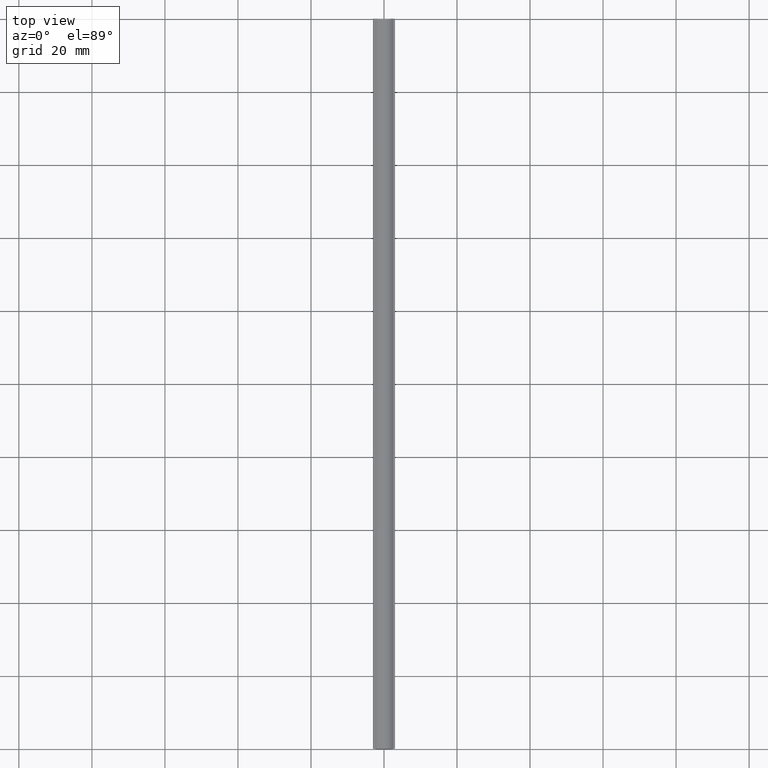
[diagram: clean part render]
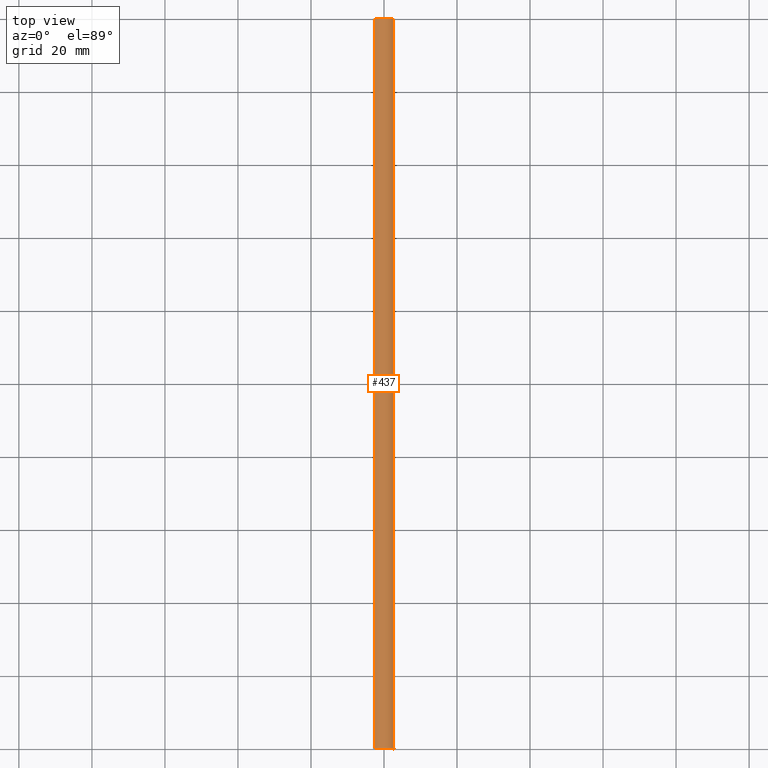
[diagram: same view with one face highlighted and labeled with its STEP entity id]
A machine part, top view. The second image highlights one B-rep face of the part: STEP entity #437.
In plain terms, the highlighted face is a freeform B-spline surface patch.
Its self-contained STEP definition (entity closure, byte-faithful):
#152=CARTESIAN_POINT('',(2.477319587627130,0.0,1.101030927835138));
#153=VERTEX_POINT('',#152);
#165=CARTESIAN_POINT('',(-2.477319587630510,0.0,1.101030927835092));
#166=VERTEX_POINT('',#165);
#167=CARTESIAN_POINT('',(-2.477319587630510,0.0,1.101030927835092));
#168=CARTESIAN_POINT('',(-2.243605512997933,0.0,0.841884956283377));
#169=CARTESIAN_POINT('',(-1.693889548455284,0.0,0.397998059425644));
#170=CARTESIAN_POINT('',(-0.786785272524818,0.0,0.050367243145911));
#171=CARTESIAN_POINT('',(0.117202742366407,0.0,-0.032485259452997));
#172=CARTESIAN_POINT('',(0.899341585064564,0.0,0.091211854875534));
#173=CARTESIAN_POINT('',(1.737008639823064,0.0,0.437582120115600));
#174=CARTESIAN_POINT('',(2.224163110301102,0.0,0.820229923310281));
#175=CARTESIAN_POINT('',(2.477319587627130,0.0,1.101030927835138));
#176=B_SPLINE_CURVE_WITH_KNOTS('',3,(#167,#168,#169,#170,#171,#172,#173,#174,#175),.UNSPECIFIED.,.F.,.U.,(4,1,1,1,1,1,4),(0.000000388793252,1.046878569888817,2.093839955818141,2.878922345936131,3.751381498403354,4.449332256195157,5.583453707900905),.UNSPECIFIED.);
#177=EDGE_CURVE('',#166,#153,#176,.T.);
#215=CARTESIAN_POINT('',(-2.477319587630510,200.0,1.101030927835092));
#216=VERTEX_POINT('',#215);
#228=CARTESIAN_POINT('',(2.477319587627130,200.0,1.101030927835138));
#229=VERTEX_POINT('',#228);
#230=CARTESIAN_POINT('',(-2.477319587630510,200.0,1.101030927835092));
#231=CARTESIAN_POINT('',(-2.185301951687908,200.000000000000200,0.776901298571105));
#232=CARTESIAN_POINT('',(-1.614482824410439,199.999999999999690,0.352477076912504));
#233=CARTESIAN_POINT('',(-0.699253217234550,200.000000000000400,0.042460696455248));
#234=CARTESIAN_POINT('',(0.088041053746234,199.999999999999090,-0.029793271423371));
#235=CARTESIAN_POINT('',(0.754510882835182,200.000000000001190,0.066744718531499));
#236=CARTESIAN_POINT('',(1.610275172972183,199.999999999998890,0.356528981793505));
#237=CARTESIAN_POINT('',(2.146503356365620,200.000000000000510,0.733434808261490));
#238=CARTESIAN_POINT('',(2.477319587627130,200.0,1.101030927835138));
#239=B_SPLINE_CURVE_WITH_KNOTS('',3,(#230,#231,#232,#233,#234,#235,#236,#237,#238),.UNSPECIFIED.,.F.,.U.,(4,1,1,1,1,1,4),(0.000000388793252,1.308621055642397,2.093839955818141,2.878922345936131,3.664121031663046,4.100346029470019,5.583453707900905),.UNSPECIFIED.);
#240=EDGE_CURVE('',#216,#229,#239,.T.);
#399=CARTESIAN_POINT('',(-2.477319587630510,200.0,1.101030927835092));
#400=CARTESIAN_POINT('',(-2.477319587630510,0.0,1.101030927835092));
#401=QUASI_UNIFORM_CURVE('',1,(#399,#400),.UNSPECIFIED.,.F.,.U.);
#402=EDGE_CURVE('',#216,#166,#401,.T.);
#413=CARTESIAN_POINT('',(2.535014607371179,205.0,1.166645976716487));
#414=CARTESIAN_POINT('',(2.535014607371179,-5.125000000000000,1.166645976716487));
#415=CARTESIAN_POINT('',(-0.052108473874446,205.0,-1.854466788898873));
#416=CARTESIAN_POINT('',(-0.052108473874446,-5.125000000000000,-1.854466788898873));
#417=CARTESIAN_POINT('',(-2.578074539718253,205.0,1.217962805784057));
#418=CARTESIAN_POINT('',(-2.578074539718253,-5.125000000000000,1.217962805784057));
#426=(BOUNDED_SURFACE()B_SPLINE_SURFACE(1,2,((#413,#415,#417),(#414,#416,#418)),.UNSPECIFIED.,.F.,.F.,.U.)B_SPLINE_SURFACE_WITH_KNOTS((2,2),(3,3),(0.0,210.125000000000110),(0.0,6.225207236369077),.UNSPECIFIED.)GEOMETRIC_REPRESENTATION_ITEM()RATIONAL_B_SPLINE_SURFACE(((1.0,0.642787609686539,1.0),(1.0,0.642787609686539,1.0)))REPRESENTATION_ITEM('')SURFACE());
#427=ORIENTED_EDGE('',*,*,#177,.T.);
#428=CARTESIAN_POINT('',(2.477319587627130,200.0,1.101030927835138));
#429=CARTESIAN_POINT('',(2.477319587627130,0.0,1.101030927835138));
#430=QUASI_UNIFORM_CURVE('',1,(#428,#429),.UNSPECIFIED.,.F.,.U.);
#431=EDGE_CURVE('',#229,#153,#430,.T.);
#432=ORIENTED_EDGE('',*,*,#431,.F.);
#433=ORIENTED_EDGE('',*,*,#240,.F.);
#434=ORIENTED_EDGE('',*,*,#402,.T.);
#435=EDGE_LOOP('',(#427,#432,#433,#434));
#436=FACE_OUTER_BOUND('',#435,.T.);
#437=ADVANCED_FACE('',(#436),#426,.F.);